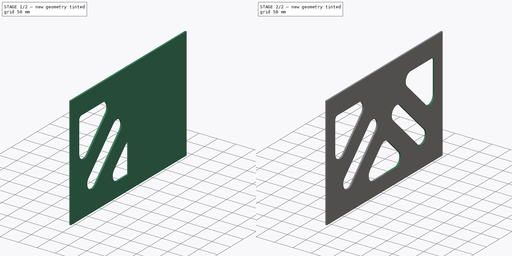
[diagram: build sequence overview — one tinted view per stage of 2, left to right]
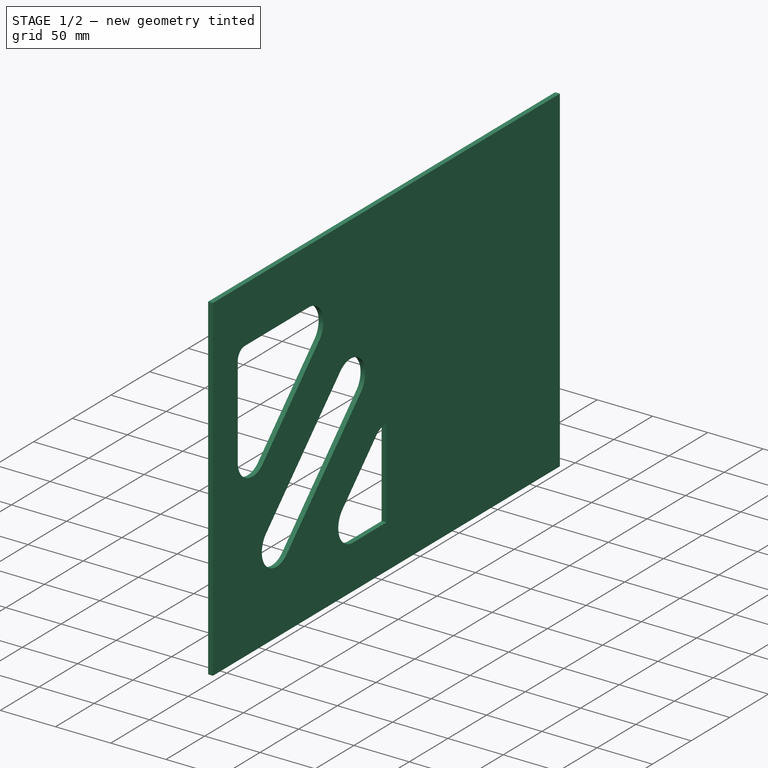
[diagram: stage 1 of 2 — iso view after this stage's code; geometry added in this stage tinted green]
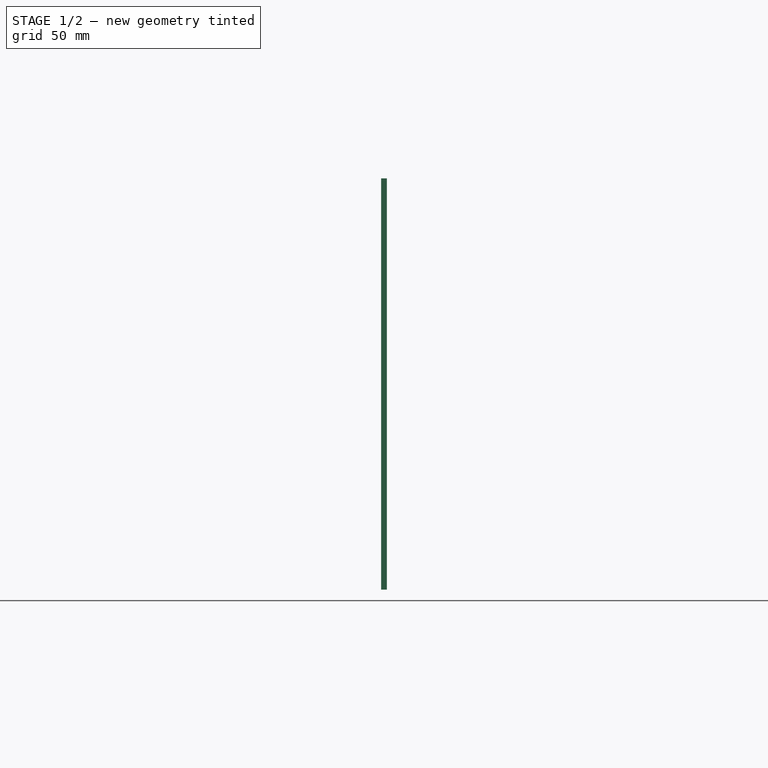
[diagram: stage 1 of 2 — front view after this stage's code; geometry added in this stage tinted green]
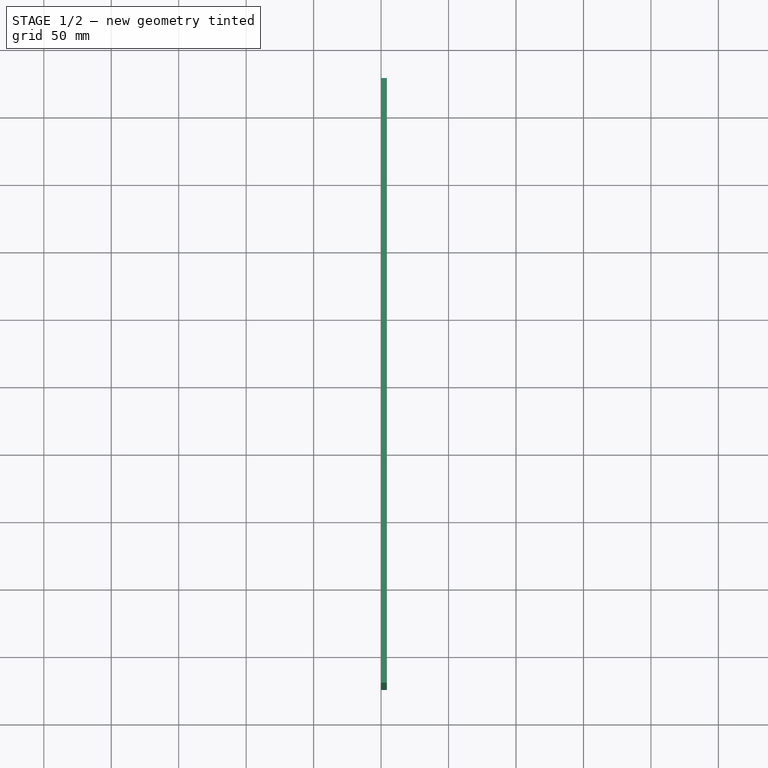
[diagram: stage 1 of 2 — top view after this stage's code; geometry added in this stage tinted green]
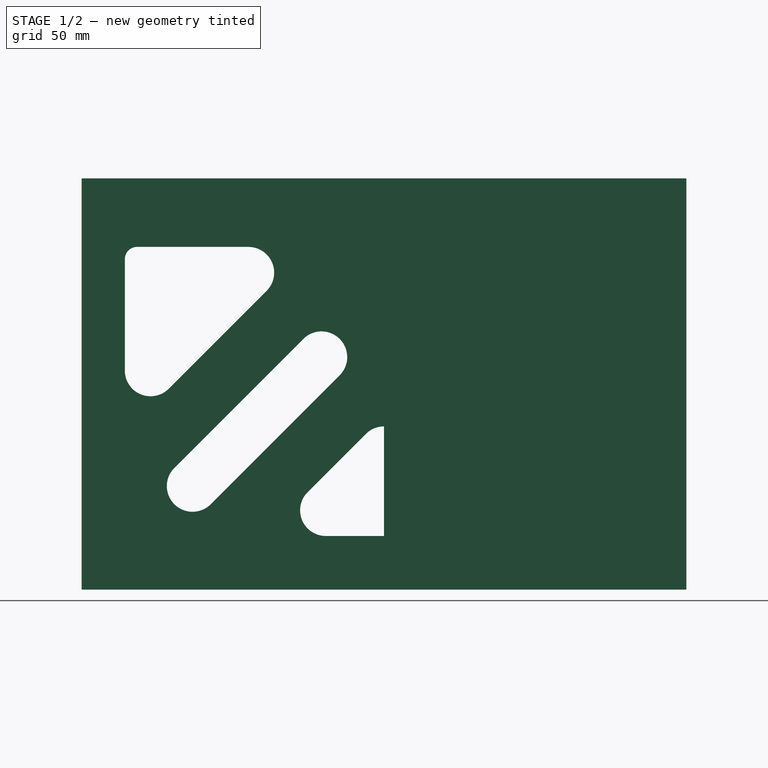
[diagram: stage 1 of 2 — right view after this stage's code; geometry added in this stage tinted green]
FCSTD DOCUMENT  (FreeCAD 0.17R13522 (Git))
Label: brace plate lid front
License: CreativeCommons Attribution
LicenseURL: http://creativecommons.org/licenses/by/4.0/
objects: Sketcher::SketchObject×2, PartDesign::Pad×1, PartDesign::Pocket×1, PartDesign::Mirrored×1, PartDesign::Body×1
note: 8 computed .brp shape members not serialized (recipe doc carries the construction recipe); baked Part::Feature solids carry a one-line shape summary decoded from their .brp

FEATURE [Sketcher::SketchObject] Sketch001
  Placement = pos=(0,0,0) rot=(0.57735,0.57735,0.57735;2.0944rad)
  sketch-geometry (4):
    g0: LineSegment StartX=-224.155 StartY=254 StartZ=0 EndX=224.155 EndY=254 EndZ=0
    g1: LineSegment StartX=224.155 StartY=254 StartZ=0 EndX=224.155 EndY=-50.8 EndZ=0
    g2: LineSegment StartX=224.155 StartY=-50.8 StartZ=0 EndX=-224.155 EndY=-50.8 EndZ=0
    g3: LineSegment StartX=-224.155 StartY=-50.8 StartZ=0 EndX=-224.155 EndY=254 EndZ=0
  constraints (12):
    c: Coincident(g0,g1)
    c: Coincident(g1,g2)
    c: Coincident(g2,g3)
    c: Coincident(g3,g0)
    c: Horizontal(g0)
    c: Horizontal(g2)
    c: Vertical(g1)
    c: Vertical(g3)
    c: DistanceY(g1,g1) = 304.8
    c: DistanceX(g2,g2) = 448.31
    c: Symmetric(g0,g0,g-2)
    c: DistanceY(g1,g-1) = 50.8
FEATURE [PartDesign::Pad] Pad
  Length = 4.318
  Length2 = 100.076
  Placement = pos=(0,0,0) rot=(0.57735,0.57735,0.57735;2.0944rad)
  Profile = -> Sketch001
  Type = 0
FEATURE [Sketcher::SketchObject] Sketch  label="Tine bracing plate"
  ExternalGeometry = -> [Pad]
  MapMode = 5
  Placement = pos=(4.318,0,0) rot=(0.57735,0.57735,0.57735;2.0944rad)
  Support = -> [Pad]
  sketch-geometry (15):
    g0: ArcOfCircle CenterX=-46.3152 CenterY=121.546 CenterZ=0 NormalX=0 NormalY=0 NormalZ=1 AngleXU=0 Radius=19.05 StartAngle=5.49779 EndAngle=8.63938
    g1: ArcOfCircle CenterX=-141.917 CenterY=25.9449 CenterZ=0 NormalX=0 NormalY=0 NormalZ=1 AngleXU=0 Radius=19.05 StartAngle=2.35619 EndAngle=5.49779
    g2: LineSegment StartX=-59.7855 StartY=135.017 StartZ=0 EndX=-155.387 EndY=39.4153 EndZ=0
    g3: LineSegment StartX=-32.8448 StartY=108.076 StartZ=0 EndX=-128.446 EndY=12.4746 EndZ=0
    g4: LineSegment StartX=-13.4704 StartY=64.5886 StartZ=0 EndX=-56.5933 EndY=21.4658 EndZ=0
    g5: ArcOfCircle CenterX=1.7e-11 CenterY=51.1183 CenterZ=0 NormalX=0 NormalY=0 NormalZ=1 AngleXU=0 Radius=19.05 StartAngle=1.5708 EndAngle=2.35619
    g6: ArcOfCircle CenterX=-43.1229 CenterY=7.99537 CenterZ=0 NormalX=0 NormalY=0 NormalZ=1 AngleXU=0 Radius=19.05 StartAngle=2.35619 EndAngle=4.71239
    g7: LineSegment StartX=-183.066 StartY=203.2 StartZ=0 EndX=-100.455 EndY=203.2 EndZ=0
    g8: LineSegment StartX=-86.9845 StartY=170.68 StartZ=0 EndX=-159.575 EndY=98.0891 EndZ=0
    g9: LineSegment StartX=-192.095 StartY=111.559 StartZ=0 EndX=-192.095 EndY=194.171 EndZ=0
    g10: LineSegment StartX=-43.1229 StartY=-11.0546 StartZ=0 EndX=-4e-12 EndY=-11.0546 EndZ=0
    g11: ArcOfCircle CenterX=-183.066 CenterY=194.171 CenterZ=0 NormalX=0 NormalY=0 NormalZ=1 AngleXU=0 Radius=9.02918 StartAngle=1.5708 EndAngle=3.14159
    g12: ArcOfCircle CenterX=-100.455 CenterY=184.15 CenterZ=0 NormalX=0 NormalY=0 NormalZ=1 AngleXU=0 Radius=19.05 StartAngle=5.49779 EndAngle=7.85398
    g13: ArcOfCircle CenterX=-173.045 CenterY=111.559 CenterZ=0 NormalX=0 NormalY=0 NormalZ=1 AngleXU=0 Radius=19.05 StartAngle=3.14159 EndAngle=5.49779
    g14: LineSegment StartX=-4e-12 StartY=70.1683 StartZ=0 EndX=-4e-12 EndY=-11.0546 EndZ=0
  constraints (33):
    c: Tangent(g0,g3) = 1.5708
    c: Tangent(g0,g2) = -1.5708
    c: Tangent(g2,g1) = -1.5708
    c: Tangent(g3,g1) = 1.5708
    c: Equal(g0,g1)
    c: Tangent(g4,g5) = -1.5708
    c: Tangent(g4,g6) = -1.5708
    c: Parallel(g4,g3)
    c: Equal(g6,g5)
    c: Horizontal(g7)
    c: Vertical(g9)
    c: Angle(g5) = 0.785398
    c: Angle(g6) = 2.35619
    c: Tangent(g6,g10) = -1.5708
    c: Horizontal(g10)
    c: Parallel(g2,g8)
    c: Tangent(g7,g11) = 1.5708
    c: Tangent(g9,g11) = 1.5708
    c: Tangent(g7,g12) = 1.5708
    c: Tangent(g8,g12) = 1.5708
    c: Tangent(g8,g13) = 1.5708
    c: Tangent(g9,g13) = 1.5708
    c: Coincident(g14,g5)
    c: Coincident(g14,g10)
    c: Vertical(g14)
    c: PointOnObject(g10,g-2)
    c: Equal(g12,g13)
    c: Distance(g1,g8) = 44.45
    c: Radius(g1) = 19.05
    c: DistanceY(g7,g-3) = 50.8
    c: Distance(g4,g3) = 44.45
    c: Equal(g13,g1)
    c: Equal(g1,g6)
FEATURE [PartDesign::Pocket] Pocket
  BaseFeature = -> Pad
  Length = 5.08
  Length2 = 100
  Placement = pos=(0,0,0) rot=(0.57735,0.57735,0.57735;2.0944rad)
  Profile = -> Sketch
  Type = 1
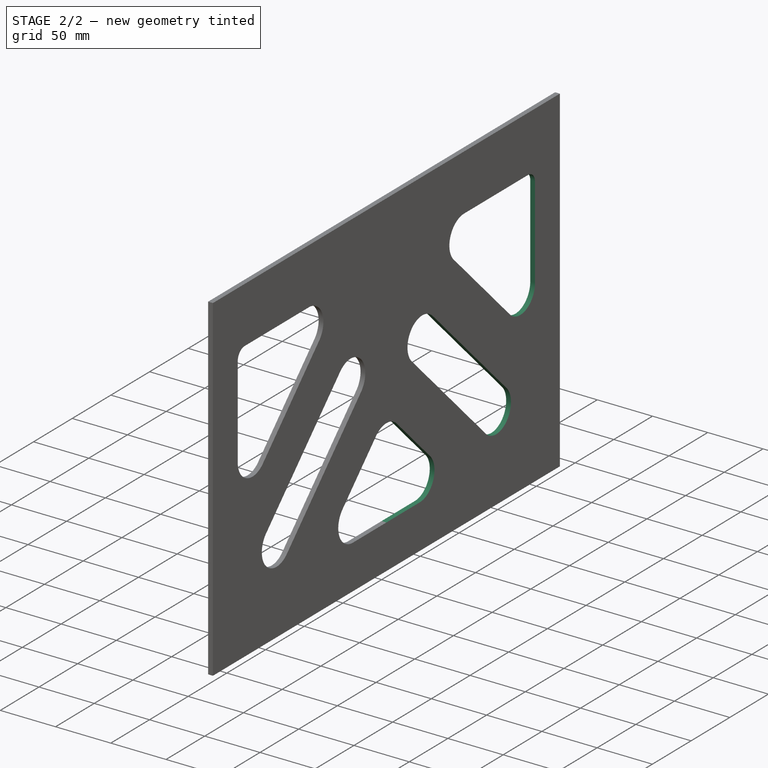
[diagram: stage 2 of 2 — iso view after this stage's code; geometry added in this stage tinted green]
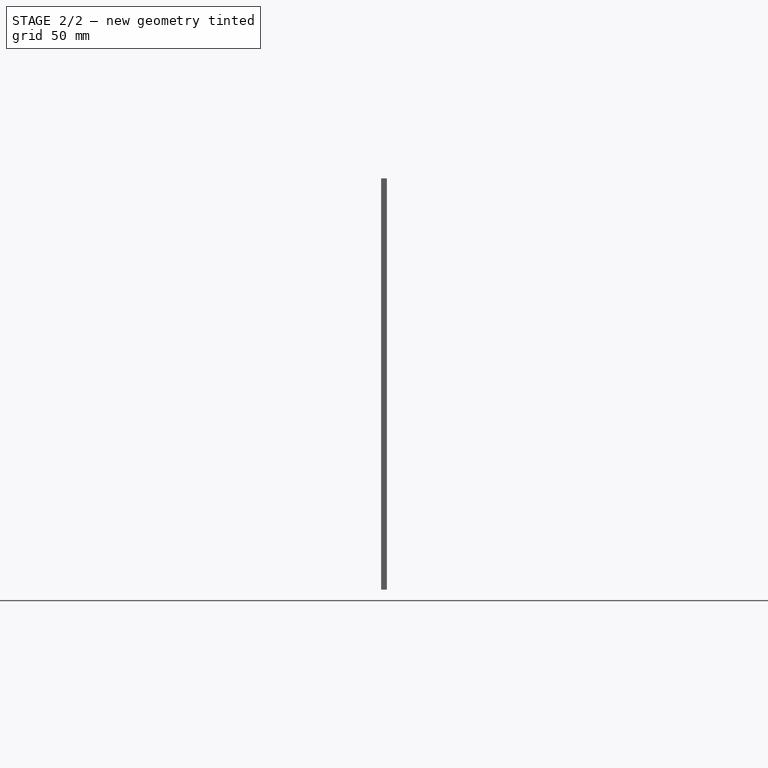
[diagram: stage 2 of 2 — front view after this stage's code; geometry added in this stage tinted green]
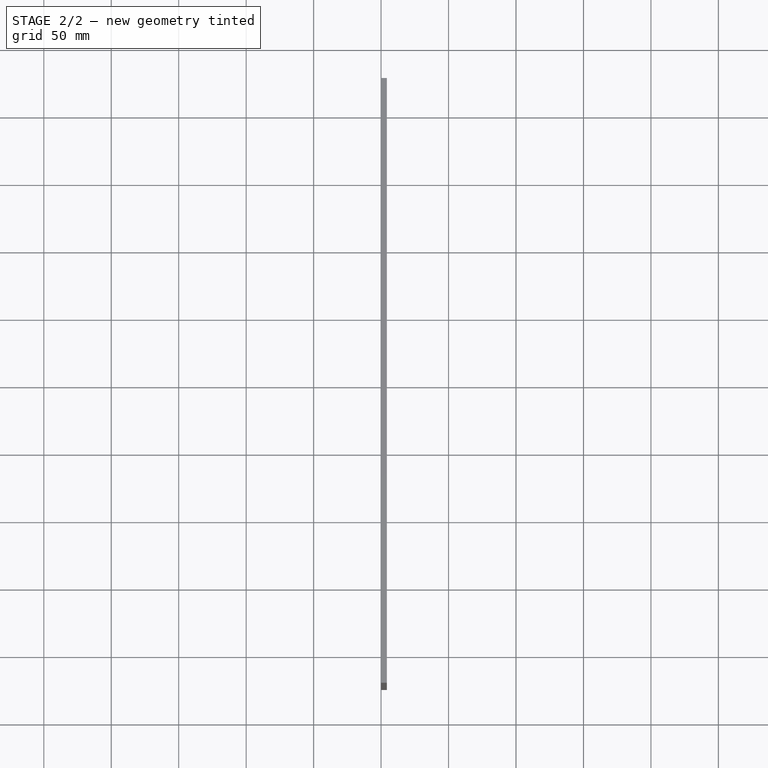
[diagram: stage 2 of 2 — top view after this stage's code; geometry added in this stage tinted green]
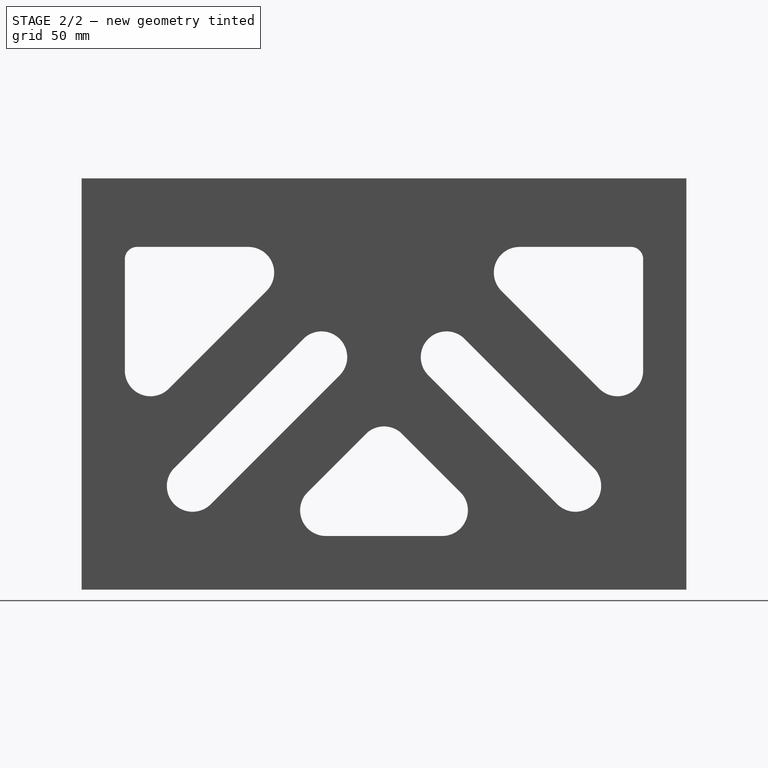
[diagram: stage 2 of 2 — right view after this stage's code; geometry added in this stage tinted green]
FEATURE [PartDesign::Mirrored] Mirrored
  BaseFeature = -> Pocket
  MirrorPlane = -> Sketch [V_Axis]
  Originals = -> [Pocket]
  Placement = pos=(0,0,0) rot=(0.57735,0.57735,0.57735;2.0944rad)
FEATURE [PartDesign::Body] Body
  Group = -> [Sketch001,Pad,Sketch,Pocket,Mirrored]
  Origin = -> Origin
  Tip = -> Mirrored
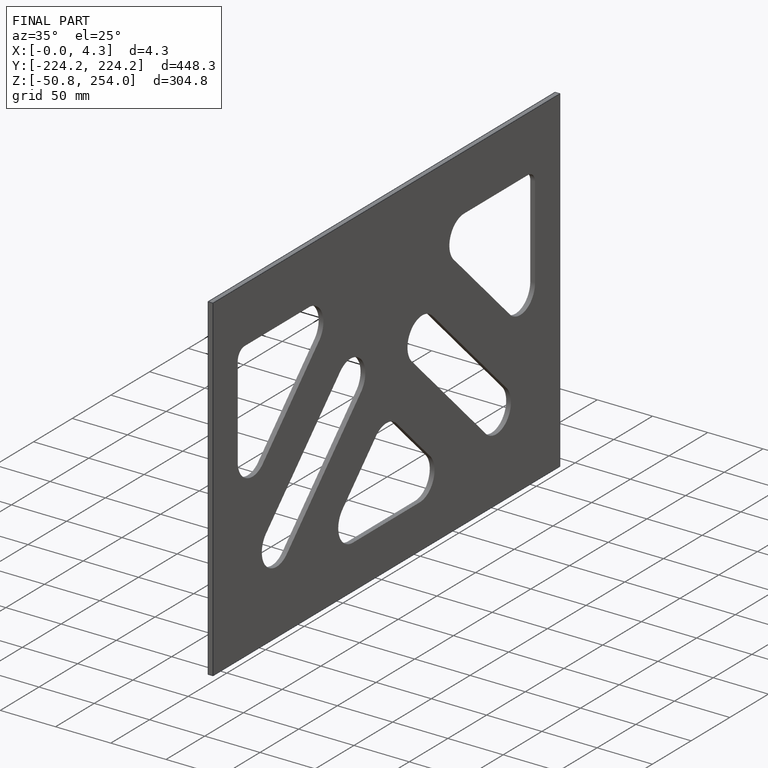
[diagram: finished part — iso view with bounding-box wireframe]
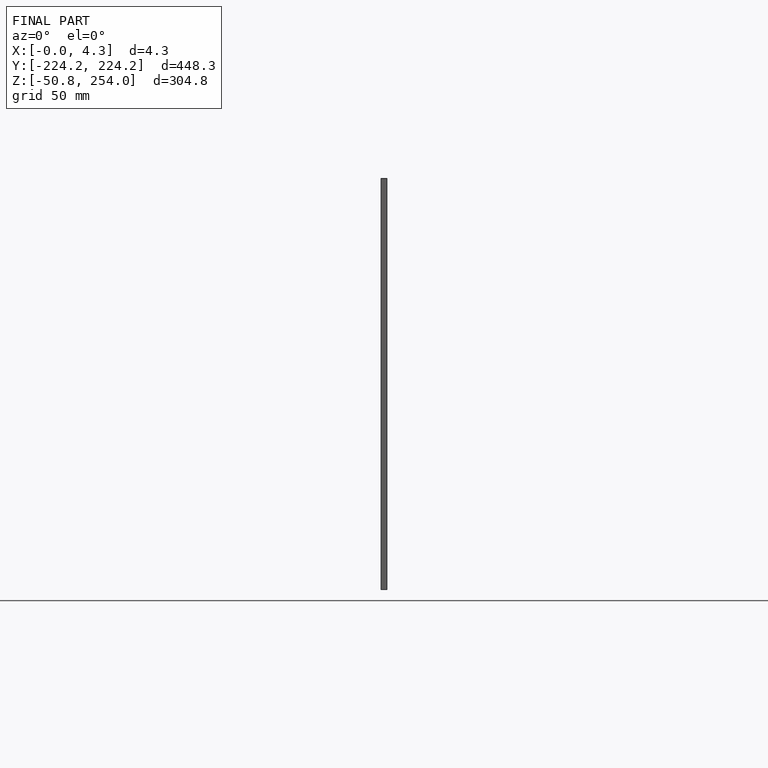
[diagram: finished part — front view with bounding-box wireframe]
